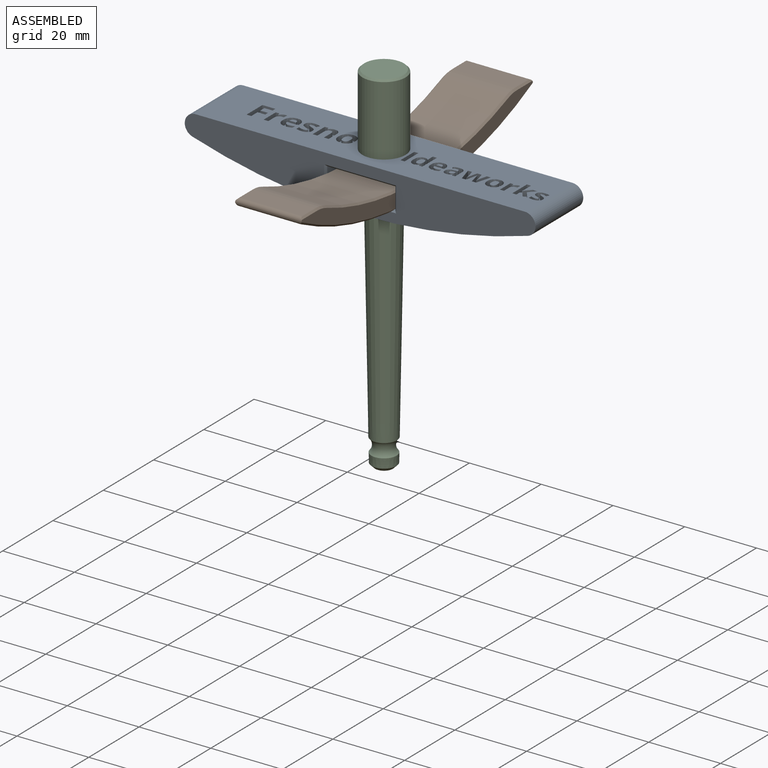
[diagram: assembled view]
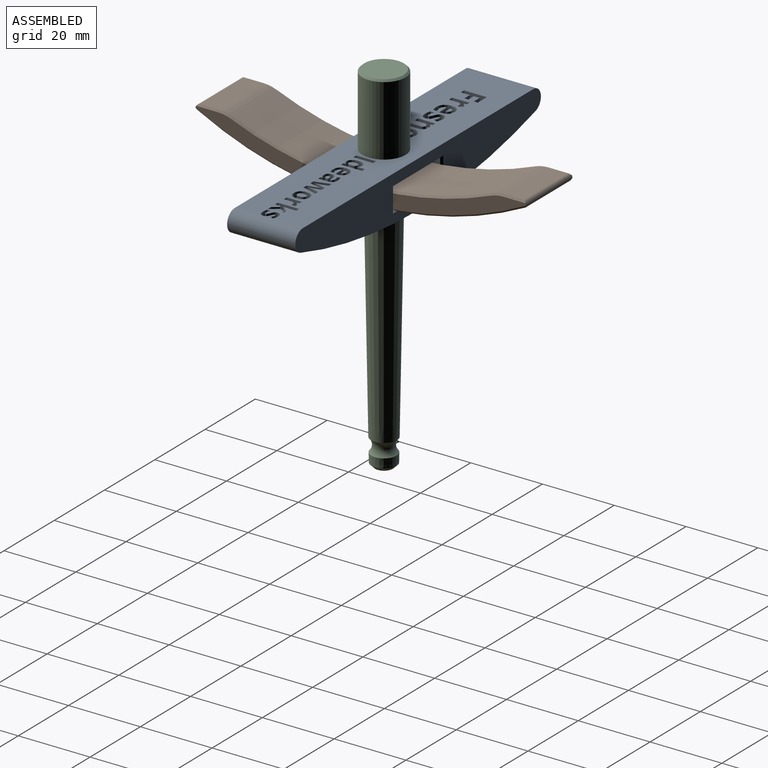
[diagram: assembled view, second angle]
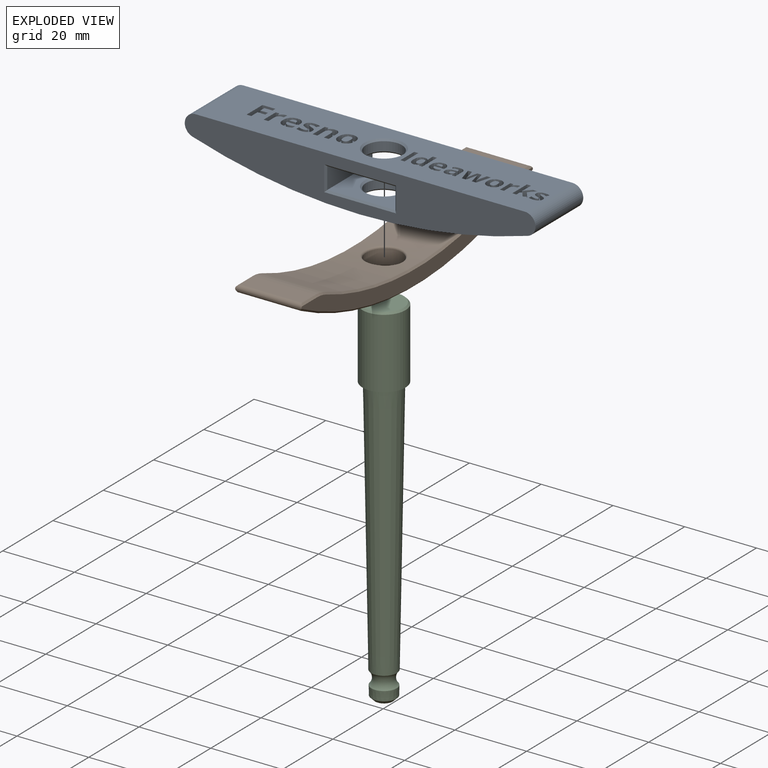
[diagram: exploded view]
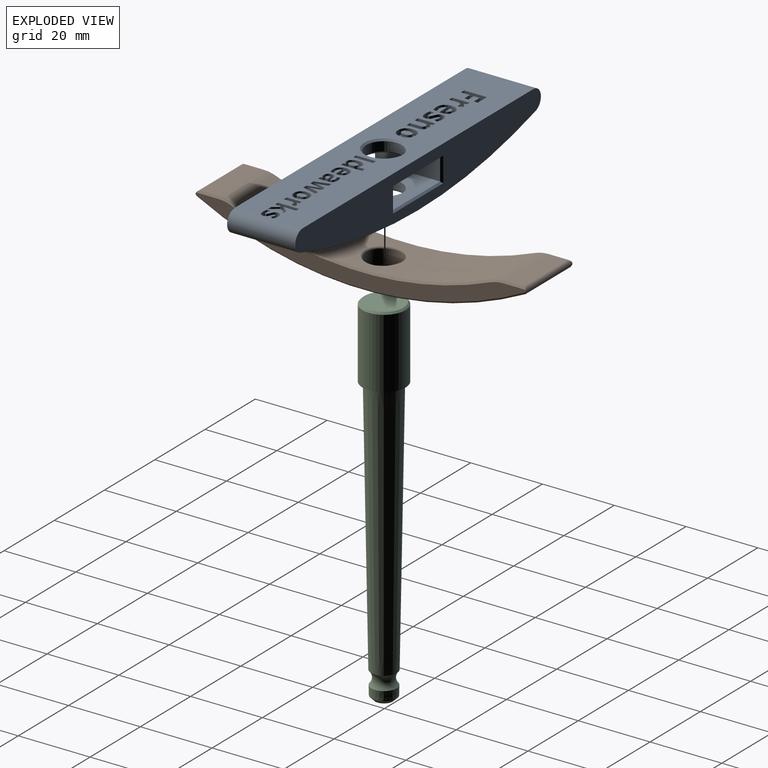
[diagram: exploded view, second angle]
ASSEMBLY  parts=3 mates=3
PART A: 319 faces, bbox 97.7x19x13 mm
  f0: plane 91.73x19mm, normal (0,0,-1), area 1462.8mm2, adj f6,f7,f10,f22,f23,f24,f25,f26
  f1: cylinder r=156.74mm len=93.51mm, axis (0,1,0), area 1709.6mm2, adj f6,f7,f13,f22,f23
  f2: plane 19x18mm, normal (0,0,1), area 247.5mm2, adj f3,f5,f11,f15,f19
  f3: plane 18x6mm, normal (1,0,0), area 108mm2, adj f2,f4,f17,f18
  f4: plane 19x18mm, normal (0,0,-1), area 247.5mm2, adj f3,f5,f12,f16,f20
  f5: plane 18x6mm, normal (-1,0,0), area 108mm2, adj f2,f4,f14,f21
  f6: plane 97.73x13mm, normal (0,-1,0), area 872.9mm2, adj f0,f1,f18,f19,f20,f21,f22,f23
  f7: plane 97.73x13mm, normal (0,1,0), area 872.9mm2, adj f0,f1,f14,f15,f16,f17,f22,f23
  f8: cylinder r=5mm len=10mm, axis (0,0,-1), area 75.5mm2, adj f12,f13
  f9: cylinder r=5mm len=10mm, axis (0,0,-1), area 80.5mm2, adj f10,f11
  f10: cone r=5.48mm half-angle=45deg, axis (0,0,-1), area 22.6mm2, adj f0,f9
  f11: cone r=5.48mm half-angle=45deg, axis (0,0,1), area 22.6mm2, adj f2,f9
  f12: cone r=5mm half-angle=45deg, axis (0,0,-1), area 22.6mm2, adj f4,f8
  f13: bspline ~11x10.97mm, area 22.8mm2, adj f1,f8
  f14: plane 7x0.5mm, normal (-0.71,0.71,0), area 4.6mm2, adj f5,f7,f15,f16
  f15: plane 20x0.5mm, normal (0,0.71,0.71), area 13.8mm2, adj f2,f7,f14,f17
  f16: plane 20x0.5mm, normal (0,0.71,-0.71), area 13.8mm2, adj f4,f7,f14,f17
  f17: plane 7x0.5mm, normal (0.71,0.71,0), area 4.6mm2, adj f3,f7,f15,f16
  f18: plane 7x0.5mm, normal (0.71,-0.71,0), area 4.6mm2, adj f3,f6,f19,f20
  f19: plane 20x0.5mm, normal (0,-0.71,0.71), area 13.8mm2, adj f2,f6,f18,f21
  f20: plane 20x0.5mm, normal (0,-0.71,-0.71), area 13.8mm2, adj f4,f6,f18,f21
  f21: plane 7x0.5mm, normal (-0.71,-0.71,0), area 4.6mm2, adj f5,f6,f19,f20
  f22: cylinder r=3mm len=19mm, axis (0,1,0), area 161.8mm2, adj f0,f1,f6,f7
  f23: cylinder r=3mm len=19mm, axis (0,1,0), area 161.8mm2, adj f0,f1,f6,f7
  f24: extruded ~1.5x0.45mm, area 0.7mm2, adj f0,f25,f36,f37
  f25: extruded ~1.5x0.83mm, area 1.3mm2, adj f0,f24,f26,f37
  f26: extruded ~1.5x0.66mm, area 1.4mm2, adj f0,f25,f27,f37
  f27: plane 1.5x0.06mm, normal (0,1,0), area 0.1mm2, adj f0,f26,f28,f37
  f28: plane 1.5x0.81mm, normal (-0.97,0.23,0), area 1.3mm2, adj f0,f27,f29,f37
  f29: plane 1.5x1mm, normal (0,1,0), area 1.5mm2, adj f0,f28,f30,f37
  f30: plane 4.84x1.5mm, normal (1,0,0), area 7.3mm2, adj f0,f29,f31,f37
  f31: plane 1.5x1.32mm, normal (0,-1,0), area 2mm2, adj f0,f30,f32,f37
  f32: plane 2.46x1.5mm, normal (-1,0,0), area 3.7mm2, adj f0,f31,f33,f37
  f33: extruded ~1.5x0.91mm, area 1.5mm2, adj f0,f32,f34,f37
  f34: extruded ~1.5x0.98mm, area 1.6mm2, adj f0,f33,f35,f37
  f35: extruded ~1.5x0.39mm, area 0.6mm2, adj f0,f34,f36,f37
  f36: plane 1.5x1.24mm, normal (-1,-0.08,0), area 1.9mm2, adj f0,f24,f35,f37
  f37: plane 4.93x3.14mm, normal (0,0,-1), area 8.4mm2, adj f24,f25,f26,f27,f28,f29,f30,f31
  f38: extruded ~1.5x1.13mm, area 1.9mm2, adj f0,f39,f63,f64
  f39: extruded ~1.5x0.62mm, area 1mm2, adj f0,f38,f40,f64
  f40: extruded ~1.5x0.46mm, area 0.9mm2, adj f0,f39,f41,f64
  f41: extruded ~1.5x0.83mm, area 1.4mm2, adj f0,f40,f42,f64
  f42: extruded ~1.5x0.83mm, area 1.4mm2, adj f0,f41,f43,f64
  f43: extruded ~1.5x0.31mm, area 0.6mm2, adj f0,f42,f44,f64
  f44: extruded ~1.5x0.58mm, area 1.1mm2, adj f0,f43,f45,f64
  f45: extruded ~1.5x0.65mm, area 1mm2, adj f0,f44,f46,f64
  f46: extruded ~1.5x0.68mm, area 1.1mm2, adj f0,f45,f47,f64
  f47: plane 1.5x0.95mm, normal (-0.92,-0.39,0), area 1.5mm2, adj f0,f46,f48,f64
  f48: extruded ~1.7x1.5mm, area 2.6mm2, adj f0,f47,f49,f64
  f49: extruded ~1.5x1.42mm, area 2.2mm2, adj f0,f48,f50,f64
  f50: extruded ~1.5x1mm, area 1.7mm2, adj f0,f49,f51,f64
  f51: extruded ~1.5x0.63mm, area 1mm2, adj f0,f50,f52,f64
  f52: extruded ~1.5x0.46mm, area 0.9mm2, adj f0,f51,f53,f64
  f53: extruded ~1.5x0.82mm, area 1.4mm2, adj f0,f52,f54,f64
  f54: extruded ~1.5x0.62mm, area 1mm2, adj f0,f53,f55,f64
  f55: extruded ~1.5x0.33mm, area 0.6mm2, adj f0,f54,f56,f64
  f56: extruded ~1.5x0.25mm, area 0.4mm2, adj f0,f55,f57,f64
  f57: extruded ~1.5x0.72mm, area 1.4mm2, adj f0,f56,f58,f64
  f58: extruded ~1.5x0.81mm, area 1.2mm2, adj f0,f57,f59,f64
  f59: extruded ~1.5x0.83mm, area 1.3mm2, adj f0,f58,f60,f64
  f60: plane 1.5x1.09mm, normal (1,0,0), area 1.6mm2, adj f0,f59,f61,f64
  f61: extruded ~1.5x0.7mm, area 1.1mm2, adj f0,f60,f62,f64
  f62: extruded ~1.5x0.9mm, area 1.4mm2, adj f0,f61,f63,f64
  f63: extruded ~1.55x1.5mm, area 2.4mm2, adj f0,f38,f62,f64
  f64: plane 5.01x3.67mm, normal (0,0,-1), area 11.7mm2, adj f38,f39,f40,f41,f42,f43,f44,f45
  f65: plane 1.5x1.32mm, normal (0,-1,0), area 2mm2, adj f0,f66,f81,f82
  f66: plane 3.15x1.5mm, normal (-1,0,0), area 4.7mm2, adj f0,f65,f67,f82
  f67: extruded ~1.5x1.32mm, area 2.1mm2, adj f0,f66,f68,f82
  f68: extruded ~1.5x1.28mm, area 2.1mm2, adj f0,f67,f69,f82
  f69: extruded ~1.5x0.88mm, area 1.4mm2, adj f0,f68,f70,f82
  f70: extruded ~1.5x0.61mm, area 1.2mm2, adj f0,f69,f71,f82
  f71: plane 1.5x0.07mm, normal (0,1,0), area 0.1mm2, adj f0,f70,f72,f82
  f72: plane 1.5x0.62mm, normal (-0.96,0.28,0), area 1mm2, adj f0,f71,f73,f82
  f73: plane 1.5x1.01mm, normal (0,1,0), area 1.5mm2, adj f0,f72,f74,f82
  f74: plane 4.84x1.5mm, normal (1,0,0), area 7.3mm2, adj f0,f73,f75,f82
  f75: plane 1.5x1.32mm, normal (0,-1,0), area 2mm2, adj f0,f74,f76,f82
  f76: plane 2.28x1.5mm, normal (-1,0,0), area 3.4mm2, adj f0,f75,f77,f82
  f77: extruded ~1.5x1.23mm, area 1.9mm2, adj f0,f76,f78,f82
  f78: extruded ~1.5x0.8mm, area 1.4mm2, adj f0,f77,f79,f82
  f79: extruded ~1.5x0.59mm, area 1mm2, adj f0,f78,f80,f82
  f80: extruded ~1.5x0.78mm, area 1.2mm2, adj f0,f79,f81,f82
  f81: plane 2.82x1.5mm, normal (1,0,0), area 4.2mm2, adj f0,f65,f80,f82
  f82: plane 4.93x4.46mm, normal (0,0,-1), area 14.3mm2, adj f65,f66,f67,f68,f69,f70,f71,f72
  f83: plane 5.46x1.5mm, normal (1,0,0), area 8.2mm2, adj f0,f84,f86,f87
  f84: plane 1.5x1.16mm, normal (0,-1,0), area 1.7mm2, adj f0,f83,f85,f87
  f85: plane 5.46x1.5mm, normal (-1,0,0), area 8.2mm2, adj f0,f84,f86,f87
  f86: plane 1.5x1.16mm, normal (0,1,0), area 1.7mm2, adj f0,f83,f85,f87
  f87: plane 5.46x1.16mm, normal (0,0,-1), area 6.3mm2, adj f83,f84,f85,f86
  f88: plane 1.5x1.46mm, normal (0.98,-0.21,0), area 2.2mm2, adj f0,f89,f113,f114
  f89: plane 1.5x1.24mm, normal (0,-1,0), area 1.9mm2, adj f0,f88,f90,f114
  f90: plane 4.17x1.5mm, normal (-0.96,-0.28,0), area 6.5mm2, adj f0,f89,f91,f114
  f91: plane 1.5x1.12mm, normal (0,1,0), area 1.7mm2, adj f0,f90,f92,f114
  f92: plane 1.85x1.5mm, normal (0.97,0.26,0), area 2.9mm2, adj f0,f91,f93,f114
  f93: extruded ~1.5x0.63mm, area 1mm2, adj f0,f92,f94,f114
  f94: extruded ~1.5x0.74mm, area 1.1mm2, adj f0,f93,f95,f114
  f95: plane 1.5x0.02mm, normal (0,1,0), area 0mm2, adj f0,f94,f96,f114
  f96: extruded ~1.5x0.28mm, area 0.4mm2, adj f0,f95,f97,f114
  f97: extruded ~1.5x0.35mm, area 0.5mm2, adj f0,f96,f98,f114
  f98: extruded ~1.5x0.34mm, area 0.5mm2, adj f0,f97,f99,f114
  f99: extruded ~1.5x0.24mm, area 0.4mm2, adj f0,f98,f100,f114
  f100: plane 2x1.5mm, normal (-0.97,0.24,0), area 3.1mm2, adj f0,f99,f101,f114
  f101: plane 1.5x1.25mm, normal (0,1,0), area 1.9mm2, adj f0,f100,f102,f114
  f102: plane 2x1.5mm, normal (0.97,0.25,0), area 3.1mm2, adj f0,f101,f103,f114
  f103: plane 1.5x0.32mm, normal (0.98,0.18,0), area 0.5mm2, adj f0,f102,f104,f114
  f104: extruded ~1.5x0.9mm, area 1.4mm2, adj f0,f103,f105,f114
  f105: plane 1.5x0.02mm, normal (0,1,0), area 0mm2, adj f0,f104,f106,f114
  f106: extruded ~1.5x1.37mm, area 2.1mm2, adj f0,f105,f107,f114
  f107: plane 1.85x1.5mm, normal (-0.97,0.25,0), area 2.9mm2, adj f0,f106,f108,f114
  f108: plane 1.5x1.14mm, normal (0,1,0), area 1.7mm2, adj f0,f107,f109,f114
  f109: plane 4.17x1.5mm, normal (0.96,-0.27,0), area 6.5mm2, adj f0,f108,f110,f114
  f110: plane 1.5x1.22mm, normal (0,-1,0), area 1.8mm2, adj f0,f109,f111,f114
  f111: plane 3.3x1.5mm, normal (-0.97,-0.22,0), area 5.1mm2, adj f0,f110,f112,f114
  f112: plane 1.5x0.03mm, normal (0,-1,0), area 0mm2, adj f0,f111,f113,f114
  f113: plane 1.84x1.5mm, normal (0.97,-0.23,0), area 2.8mm2, adj f0,f88,f112,f114
  f114: plane 6.39x4.17mm, normal (0,0,-1), area 14.9mm2, adj f88,f89,f90,f91,f92,f93,f94,f95
  f115: extruded ~1.5x0.38mm, area 0.6mm2, adj f0,f116,f127,f128
  f116: extruded ~1.5x0.72mm, area 1.1mm2, adj f0,f115,f117,f128
  f117: extruded ~1.5x0.57mm, area 1.2mm2, adj f0,f116,f118,f128
  f118: plane 1.5x0.06mm, normal (0,1,0), area 0.1mm2, adj f0,f117,f119,f128
  f119: plane 1.5x0.7mm, normal (-0.97,0.23,0), area 1.1mm2, adj f0,f118,f120,f128
  f120: plane 1.5x0.86mm, normal (0,1,0), area 1.3mm2, adj f0,f119,f121,f128
  f121: plane 4.17x1.5mm, normal (1,0,0), area 6.3mm2, adj f0,f120,f122,f128
  f122: plane 1.5x1.14mm, normal (0,-1,0), area 1.7mm2, adj f0,f121,f123,f128
  f123: plane 2.12x1.5mm, normal (-1,0,0), area 3.2mm2, adj f0,f122,f124,f128
  f124: extruded ~1.5x0.78mm, area 1.3mm2, adj f0,f123,f125,f128
  f125: extruded ~1.5x0.85mm, area 1.4mm2, adj f0,f124,f126,f128
  f126: extruded ~1.5x0.34mm, area 0.5mm2, adj f0,f125,f127,f128
  f127: plane 1.5x1.07mm, normal (-1,-0.08,0), area 1.6mm2, adj f0,f115,f126,f128
  f128: plane 4.25x2.71mm, normal (0,0,-1), area 6.2mm2, adj f115,f116,f117,f118,f119,f120,f121,f122
  f129: plane 1.5x0.63mm, normal (0.79,0.62,0), area 1.2mm2, adj f0,f130,f143,f144
  f130: plane 1.5x0.02mm, normal (0,1,0), area 0mm2, adj f0,f129,f131,f144
  f131: plane 1.5x0.95mm, normal (-1,-0.06,0), area 1.4mm2, adj f0,f130,f132,f144
  f132: plane 2.59x1.5mm, normal (-1,0,0), area 3.9mm2, adj f0,f131,f133,f144
  f133: plane 1.5x1.14mm, normal (0,1,0), area 1.7mm2, adj f0,f132,f134,f144
  f134: plane 5.81x1.5mm, normal (1,0,0), area 8.7mm2, adj f0,f133,f135,f144
  f135: plane 1.5x1.14mm, normal (0,-1,0), area 1.7mm2, adj f0,f134,f136,f144
  f136: plane 1.5x1.3mm, normal (-1,0,0), area 1.9mm2, adj f0,f135,f137,f144
  f137: plane 1.5x0.49mm, normal (-0.62,-0.78,0), area 0.9mm2, adj f0,f136,f138,f144
  f138: plane 1.69x1.5mm, normal (0.82,-0.58,0), area 3.1mm2, adj f0,f137,f139,f144
  f139: plane 1.5x1.31mm, normal (0,-1,0), area 2mm2, adj f0,f138,f140,f144
  f140: plane 2.36x1.76mm, normal (-0.8,0.6,0), area 4.4mm2, adj f0,f139,f141,f144
  f141: plane 1.81x1.66mm, normal (-0.74,-0.68,0), area 3.7mm2, adj f0,f140,f142,f144
  f142: plane 1.5x1.28mm, normal (0,1,0), area 1.9mm2, adj f0,f141,f143,f144
  f143: plane 1.5x1.27mm, normal (0.74,0.68,0), area 2.6mm2, adj f0,f129,f142,f144
  f144: plane 5.81x4.14mm, normal (0,0,-1), area 12.2mm2, adj f129,f130,f131,f132,f133,f134,f135,f136
  f145: extruded ~1.5x0.98mm, area 1.7mm2, adj f0,f146,f170,f171
  f146: extruded ~1.5x0.53mm, area 0.8mm2, adj f0,f145,f147,f171
  f147: extruded ~1.5x0.4mm, area 0.8mm2, adj f0,f146,f148,f171
  f148: extruded ~1.5x0.72mm, area 1.2mm2, adj f0,f147,f149,f171
  f149: extruded ~1.5x0.71mm, area 1.2mm2, adj f0,f148,f150,f171
  f150: extruded ~1.5x0.27mm, area 0.5mm2, adj f0,f149,f151,f171
  f151: extruded ~1.5x0.5mm, area 1mm2, adj f0,f150,f152,f171
  f152: extruded ~1.5x0.56mm, area 0.8mm2, adj f0,f151,f153,f171
  f153: extruded ~1.5x0.59mm, area 0.9mm2, adj f0,f152,f154,f171
  f154: plane 1.5x0.82mm, normal (-0.92,-0.39,0), area 1.3mm2, adj f0,f153,f155,f171
  f155: extruded ~1.5x1.47mm, area 2.3mm2, adj f0,f154,f156,f171
  f156: extruded ~1.5x1.22mm, area 1.9mm2, adj f0,f155,f157,f171
  f157: extruded ~1.5x0.86mm, area 1.5mm2, adj f0,f156,f158,f171
  f158: extruded ~1.5x0.55mm, area 0.8mm2, adj f0,f157,f159,f171
  f159: extruded ~1.5x0.39mm, area 0.8mm2, adj f0,f158,f160,f171
  f160: extruded ~1.5x0.71mm, area 1.2mm2, adj f0,f159,f161,f171
  f161: extruded ~1.5x0.54mm, area 0.9mm2, adj f0,f160,f162,f171
  f162: extruded ~1.5x0.28mm, area 0.5mm2, adj f0,f161,f163,f171
  f163: extruded ~1.5x0.22mm, area 0.4mm2, adj f0,f162,f164,f171
  f164: extruded ~1.5x0.62mm, area 1.2mm2, adj f0,f163,f165,f171
  f165: extruded ~1.5x0.7mm, area 1.1mm2, adj f0,f164,f166,f171
  f166: extruded ~1.5x0.71mm, area 1.1mm2, adj f0,f165,f167,f171
  f167: plane 1.5x0.94mm, normal (1,0,0), area 1.4mm2, adj f0,f166,f168,f171
  f168: extruded ~1.5x0.6mm, area 0.9mm2, adj f0,f167,f169,f171
  f169: extruded ~1.5x0.78mm, area 1.2mm2, adj f0,f168,f170,f171
  f170: extruded ~1.5x1.34mm, area 2.1mm2, adj f0,f145,f169,f171
  f171: plane 4.33x3.17mm, normal (0,0,-1), area 8.7mm2, adj f145,f146,f147,f148,f149,f150,f151,f152
  f172: extruded ~1.82x1.5mm, area 3mm2, adj f0,f173,f191,f192
  f173: extruded ~1.5x0.96mm, area 1.4mm2, adj f0,f172,f174,f192
  f174: extruded ~1.5x0.74mm, area 1.2mm2, adj f0,f173,f175,f192
  f175: plane 1.5x1.02mm, normal (-1,0,0), area 1.5mm2, adj f0,f174,f176,f192
  f176: extruded ~1.5x0.81mm, area 1.3mm2, adj f0,f175,f177,f192
  f177: extruded ~1.5x0.83mm, area 1.2mm2, adj f0,f176,f178,f192
  f178: extruded ~1.5x0.87mm, area 1.4mm2, adj f0,f177,f179,f192
  f179: extruded ~1.5x0.88mm, area 1.4mm2, adj f0,f178,f180,f192
  f180: plane 3.12x1.5mm, normal (0,-1,0), area 4.7mm2, adj f0,f179,f181,f192
  f181: plane 1.5x0.64mm, normal (-1,0,0), area 1mm2, adj f0,f180,f182,f192
  f182: extruded ~1.61x1.5mm, area 2.6mm2, adj f0,f181,f183,f192
  f183: extruded ~1.6x1.5mm, area 2.6mm2, adj f0,f182,f184,f192
  f184: extruded ~1.68x1.5mm, area 2.8mm2, adj f0,f183,f185,f192
  f185: extruded ~1.88x1.5mm, area 3mm2, adj f0,f184,f191,f192
  f186: extruded ~1.5x0.66mm, area 1.1mm2, adj f187,f190,f192,f193
  f187: extruded ~1.5x0.67mm, area 1.1mm2, adj f186,f188,f192,f193
  f188: extruded ~1.5x0.75mm, area 1.2mm2, adj f187,f189,f192,f193
  f189: plane 1.85x1.5mm, normal (0,1,0), area 2.8mm2, adj f188,f190,f192,f193
  f190: extruded ~1.5x0.75mm, area 1.2mm2, adj f186,f189,f192,f193
  f191: extruded ~1.83x1.5mm, area 3mm2, adj f0,f172,f185,f192
  f192: plane 5.01x4.45mm, normal (0,0,-1), area 14.1mm2, adj f172,f173,f174,f175,f176,f177,f178,f179
  f193: plane 1.85x1.02mm, normal (0,0,-1), area 1.5mm2, adj f186,f187,f188,f189,f190
  f194: extruded ~1.85x1.5mm, area 3mm2, adj f0,f195,f211,f212
  f195: extruded ~1.5x1.33mm, area 2.1mm2, adj f0,f194,f196,f212
  f196: extruded ~1.5x0.87mm, area 1.8mm2, adj f0,f195,f197,f212
  f197: extruded ~1.5x1.23mm, area 1.9mm2, adj f0,f196,f198,f212
  f198: extruded ~1.74x1.5mm, area 2.9mm2, adj f0,f197,f199,f212
  f199: extruded ~1.84x1.5mm, area 3mm2, adj f0,f198,f200,f212
  f200: extruded ~1.5x1.33mm, area 2.1mm2, adj f0,f199,f201,f212
  f201: extruded ~1.5x0.88mm, area 1.8mm2, adj f0,f200,f202,f212
  f202: extruded ~1.5x1.23mm, area 1.9mm2, adj f0,f201,f211,f212
  f203: extruded ~1.5x1.09mm, area 1.7mm2, adj f204,f210,f212,f213
  f204: extruded ~1.5x1.08mm, area 1.7mm2, adj f203,f205,f212,f213
  f205: extruded ~1.5x0.76mm, area 1.3mm2, adj f204,f206,f212,f213
  f206: extruded ~1.5x0.77mm, area 1.3mm2, adj f205,f207,f212,f213
  f207: extruded ~1.5x1.08mm, area 1.7mm2, adj f206,f208,f212,f213
  f208: extruded ~1.5x1.09mm, area 1.7mm2, adj f207,f209,f212,f213
  f209: extruded ~1.5x0.76mm, area 1.3mm2, adj f208,f210,f212,f213
  f210: extruded ~1.5x0.77mm, area 1.3mm2, adj f203,f209,f212,f213
  f211: extruded ~1.73x1.5mm, area 2.9mm2, adj f0,f194,f202,f212
  f212: plane 5.01x4.69mm, normal (0,0,-1), area 14.3mm2, adj f194,f195,f196,f197,f198,f199,f200,f201
  f213: plane 2.89x1.99mm, normal (0,0,-1), area 4.8mm2, adj f203,f204,f205,f206,f207,f208,f209,f210
  f214: extruded ~1.5x0.64mm, area 1.1mm2, adj f215,f236,f237,f317
  f215: extruded ~1.5x0.61mm, area 1.1mm2, adj f214,f216,f237,f317
  f216: extruded ~1.5x0.92mm, area 1.4mm2, adj f215,f217,f237,f317
  f217: extruded ~1.5x0.94mm, area 1.5mm2, adj f216,f218,f237,f317
  f218: extruded ~1.5x0.59mm, area 1.1mm2, adj f217,f219,f237,f317
  f219: extruded ~1.5x0.67mm, area 1.1mm2, adj f218,f220,f237,f317
  f220: extruded ~1.5x0.96mm, area 1.5mm2, adj f219,f221,f237,f317
  f221: plane 1.5x0.12mm, normal (1,0,0), area 0.2mm2, adj f220,f236,f237,f317
  f222: extruded ~1.5x1.15mm, area 2mm2, adj f0,f223,f235,f237
  f223: extruded ~1.5x1.18mm, area 2.1mm2, adj f0,f222,f224,f237
  f224: plane 1.5x0.05mm, normal (0,-1,0), area 0.1mm2, adj f0,f223,f225,f237
  f225: plane 1.5x0.54mm, normal (0.93,-0.38,0), area 0.9mm2, adj f0,f224,f226,f237
  f226: plane 1.5x0.87mm, normal (0,-1,0), area 1.3mm2, adj f0,f225,f227,f237
  f227: plane 5.81x1.5mm, normal (-1,0,0), area 8.7mm2, adj f0,f226,f228,f237
  f228: plane 1.5x1.14mm, normal (0,1,0), area 1.7mm2, adj f0,f227,f229,f237
  f229: plane 1.5x1.34mm, normal (1,0,0), area 2mm2, adj f0,f228,f230,f237
  f230: extruded ~1.5x0.83mm, area 1.3mm2, adj f0,f229,f231,f237
  f231: plane 1.5x0.04mm, normal (0,1,0), area 0.1mm2, adj f0,f230,f232,f237
  f232: extruded ~1.5x1.2mm, area 2.1mm2, adj f0,f231,f233,f237
  f233: extruded ~1.5x1.18mm, area 2mm2, adj f0,f232,f234,f237
  f234: extruded ~1.6x1.5mm, area 2.5mm2, adj f0,f233,f235,f237
  f235: extruded ~1.58x1.5mm, area 2.5mm2, adj f0,f222,f234,f237
  f236: extruded ~1.5x0.86mm, area 1.4mm2, adj f214,f221,f237,f317
  f237: plane 5.88x3.9mm, normal (0,0,-1), area 13.3mm2, adj f214,f215,f216,f217,f218,f219,f220,f221
  f238: extruded ~1.57x1.5mm, area 2.6mm2, adj f0,f239,f257,f258
  f239: extruded ~1.5x0.83mm, area 1.3mm2, adj f0,f238,f240,f258
  f240: extruded ~1.5x0.64mm, area 1mm2, adj f0,f239,f241,f258
  f241: plane 1.5x0.88mm, normal (-1,0,0), area 1.3mm2, adj f0,f240,f242,f258
  f242: extruded ~1.5x0.7mm, area 1.1mm2, adj f0,f241,f243,f258
  f243: extruded ~1.5x0.71mm, area 1.1mm2, adj f0,f242,f244,f258
  f244: extruded ~1.5x0.75mm, area 1.2mm2, adj f0,f243,f245,f258
  f245: extruded ~1.5x0.76mm, area 1.2mm2, adj f0,f244,f246,f258
  f246: plane 2.69x1.5mm, normal (0,-1,0), area 4mm2, adj f0,f245,f247,f258
  f247: plane 1.5x0.55mm, normal (-1,0,0), area 0.8mm2, adj f0,f246,f248,f258
  f248: extruded ~1.5x1.39mm, area 2.3mm2, adj f0,f247,f249,f258
  f249: extruded ~1.5x1.38mm, area 2.3mm2, adj f0,f248,f250,f258
  f250: extruded ~1.5x1.45mm, area 2.4mm2, adj f0,f249,f251,f258
  f251: extruded ~1.62x1.5mm, area 2.6mm2, adj f0,f250,f257,f258
  f252: extruded ~1.5x0.57mm, area 0.9mm2, adj f253,f256,f258,f259
  f253: extruded ~1.5x0.57mm, area 1mm2, adj f252,f254,f258,f259
  f254: extruded ~1.5x0.65mm, area 1.1mm2, adj f253,f255,f258,f259
  f255: plane 1.6x1.5mm, normal (0,1,0), area 2.4mm2, adj f254,f256,f258,f259
  f256: extruded ~1.5x0.65mm, area 1.1mm2, adj f252,f255,f258,f259
  f257: extruded ~1.58x1.5mm, area 2.6mm2, adj f0,f238,f251,f258
  f258: plane 4.33x3.84mm, normal (0,0,-1), area 10.5mm2, adj f238,f239,f240,f241,f242,f243,f244,f245
  f259: plane 1.6x0.88mm, normal (0,0,-1), area 1.1mm2, adj f252,f253,f254,f255,f256
  f260: plane 1.5x0.44mm, normal (-0.04,-1,0), area 0.7mm2, adj f261,f284,f285,f318
  f261: plane 1.5x0.34mm, normal (1,0,0), area 0.5mm2, adj f260,f262,f285,f318
  f262: extruded ~1.5x0.6mm, area 1mm2, adj f261,f263,f285,f318
  f263: extruded ~1.5x0.63mm, area 1mm2, adj f262,f264,f285,f318
  f264: extruded ~1.5x0.55mm, area 1.3mm2, adj f263,f265,f285,f318
  f265: extruded ~1.5x0.5mm, area 0.9mm2, adj f264,f284,f285,f318
  f266: plane 1.5x0.57mm, normal (0.93,-0.36,0), area 0.9mm2, adj f0,f267,f283,f285
  f267: plane 1.5x0.79mm, normal (0,-1,0), area 1.2mm2, adj f0,f266,f268,f285
  f268: plane 2.78x1.5mm, normal (-1,0,0), area 4.2mm2, adj f0,f267,f269,f285
  f269: extruded ~1.5x1.11mm, area 1.9mm2, adj f0,f268,f270,f285
  f270: extruded ~1.5x1.29mm, area 2mm2, adj f0,f269,f271,f285
  f271: extruded ~1.6x1.5mm, area 2.5mm2, adj f0,f270,f272,f285
  f272: plane 1.5x0.77mm, normal (0.9,-0.44,0), area 1.3mm2, adj f0,f271,f273,f285
  f273: extruded ~1.5x1.18mm, area 1.8mm2, adj f0,f272,f274,f285
  f274: extruded ~1.5x0.65mm, area 1.6mm2, adj f0,f273,f275,f285
  f275: plane 1.5x0.18mm, normal (1,0,0), area 0.3mm2, adj f0,f274,f276,f285
  f276: plane 1.5x0.73mm, normal (0.03,1,0), area 1.1mm2, adj f0,f275,f277,f285
  f277: extruded ~1.5x1.4mm, area 2.2mm2, adj f0,f276,f278,f285
  f278: extruded ~1.5x0.98mm, area 1.7mm2, adj f0,f277,f279,f285
  f279: extruded ~1.5x0.98mm, area 1.6mm2, adj f0,f278,f280,f285
  f280: extruded ~1.5x0.95mm, area 1.6mm2, adj f0,f279,f281,f285
  f281: extruded ~1.5x0.79mm, area 1.2mm2, adj f0,f280,f282,f285
  f282: extruded ~1.5x0.59mm, area 1.2mm2, adj f0,f281,f283,f285
  f283: plane 1.5x0.03mm, normal (0,-1,0), area 0mm2, adj f0,f266,f282,f285
  f284: extruded ~1.5x0.74mm, area 1.2mm2, adj f260,f265,f285,f318
  f285: plane 4.34x3.72mm, normal (0,0,-1), area 10.7mm2, adj f260,f261,f262,f263,f264,f265,f266,f267
  f286: extruded ~1.59x1.5mm, area 2.6mm2, adj f0,f287,f303,f304
  f287: extruded ~1.5x1.15mm, area 1.8mm2, adj f0,f286,f288,f304
  f288: extruded ~1.5x0.75mm, area 1.6mm2, adj f0,f287,f289,f304
  f289: extruded ~1.5x1.06mm, area 1.7mm2, adj f0,f288,f290,f304
  f290: extruded ~1.5x1.5mm, area 2.5mm2, adj f0,f289,f291,f304
  f291: extruded ~1.59x1.5mm, area 2.6mm2, adj f0,f290,f292,f304
  f292: extruded ~1.5x1.15mm, area 1.8mm2, adj f0,f291,f293,f304
  f293: extruded ~1.5x0.76mm, area 1.6mm2, adj f0,f292,f294,f304
  f294: extruded ~1.5x1.06mm, area 1.7mm2, adj f0,f293,f303,f304
  f295: extruded ~1.5x0.94mm, area 1.5mm2, adj f296,f302,f304,f305
  f296: extruded ~1.5x0.93mm, area 1.4mm2, adj f295,f297,f304,f305
  f297: extruded ~1.5x0.66mm, area 1.1mm2, adj f296,f298,f304,f305
  f298: extruded ~1.5x0.66mm, area 1.1mm2, adj f297,f299,f304,f305
  f299: extruded ~1.5x0.93mm, area 1.4mm2, adj f298,f300,f304,f305
  f300: extruded ~1.5x0.94mm, area 1.5mm2, adj f299,f301,f304,f305
  f301: extruded ~1.5x0.66mm, area 1.1mm2, adj f300,f302,f304,f305
  f302: extruded ~1.5x0.66mm, area 1.2mm2, adj f295,f301,f304,f305
  f303: extruded ~1.5x1.5mm, area 2.5mm2, adj f0,f286,f294,f304
  f304: plane 4.33x4.05mm, normal (0,0,-1), area 10.7mm2, adj f286,f287,f288,f289,f290,f291,f292,f293
  f305: plane 2.49x1.72mm, normal (0,0,-1), area 3.6mm2, adj f295,f296,f297,f298,f299,f300,f301,f302
  f306: plane 1.5x1.32mm, normal (0,-1,0), area 2mm2, adj f0,f307,f315,f316
  f307: plane 2.5x1.5mm, normal (-1,0,0), area 3.7mm2, adj f0,f306,f308,f316
  f308: plane 2.15x1.5mm, normal (0,-1,0), area 3.2mm2, adj f0,f307,f309,f316
  f309: plane 1.5x1.09mm, normal (-1,0,0), area 1.6mm2, adj f0,f308,f310,f316
  f310: plane 2.15x1.5mm, normal (0,1,0), area 3.2mm2, adj f0,f309,f311,f316
  f311: plane 1.63x1.5mm, normal (-1,0,0), area 2.4mm2, adj f0,f310,f312,f316
  f312: plane 2.31x1.5mm, normal (0,-1,0), area 3.5mm2, adj f0,f311,f313,f316
  f313: plane 1.5x1.1mm, normal (-1,0,0), area 1.6mm2, adj f0,f312,f314,f316
  f314: plane 3.62x1.5mm, normal (0,1,0), area 5.4mm2, adj f0,f313,f315,f316
  f315: plane 6.32x1.5mm, normal (1,0,0), area 9.5mm2, adj f0,f306,f314,f316
  f316: plane 6.32x3.62mm, normal (0,0,-1), area 13.2mm2, adj f306,f307,f308,f309,f310,f311,f312,f313
  f317: plane 2.49x1.68mm, normal (0,0,-1), area 3.5mm2, adj f214,f215,f216,f217,f218,f219,f220,f221
  f318: plane 1.42x1.18mm, normal (0,0,-1), area 1.4mm2, adj f260,f261,f262,f263,f264,f265,f284
PART B: 25 faces, bbox 92.5x18.5x12.8 mm
  f0: cylinder r=100mm len=90.95mm, axis (0,1,0), area 1556.5mm2, adj f19,f20,f21,f22,f23
  f1: cylinder r=94.98mm len=71.87mm, axis (0,1,0), area 1195.1mm2, adj f7,f8,f11,f16,f24
  f2: plane 17.5x5.3mm, normal (0,0,-1), area 92.7mm2, adj f7,f9,f14,f21
  f3: plane 17.5x5.3mm, normal (0,0,-1), area 92.7mm2, adj f8,f13,f18,f22
  f4: plane 92.04x11.83mm, normal (0,-1,0), area 353.5mm2, adj f14,f15,f16,f17,f18,f20,f21,f22
  f5: plane 92.04x11.83mm, normal (0,1,0), area 353.5mm2, adj f9,f10,f11,f12,f13,f19,f21,f22
  f6: cylinder r=5mm len=10mm, axis (0,0,-1), area 126.5mm2, adj f23,f24
  f7: cylinder r=10mm len=17.5mm, axis (0,1,0), area 67.9mm2, adj f1,f2,f10,f15
  f8: cylinder r=10mm len=17.5mm, axis (0,1,0), area 67.9mm2, adj f1,f3,f12,f17
  f9: plane 6.17x0.5mm, normal (0,0.71,-0.71), area 4.2mm2, adj f2,f5,f10,f21
  f10: cone r=9.5mm half-angle=45deg, axis (0,-1,0), area 2.7mm2, adj f5,f7,f9,f11
  f11: cone r=95.48mm half-angle=45deg, axis (0,1,0), area 52.3mm2, adj f1,f5,f10,f12
  f12: cone r=9.5mm half-angle=45deg, axis (0,-1,0), area 2.7mm2, adj f5,f8,f11,f13
  f13: plane 6.17x0.5mm, normal (0,0.71,-0.71), area 4.2mm2, adj f3,f5,f12,f22
  f14: plane 6.17x0.5mm, normal (0,-0.71,-0.71), area 4.2mm2, adj f2,f4,f15,f21
  f15: cone r=9.5mm half-angle=45deg, axis (0,1,0), area 2.7mm2, adj f4,f7,f14,f16
  f16: cone r=94.98mm half-angle=45deg, axis (0,-1,0), area 52.3mm2, adj f1,f4,f15,f17
  f17: cone r=9.5mm half-angle=45deg, axis (0,1,0), area 2.7mm2, adj f4,f8,f16,f18
  f18: plane 6.17x0.5mm, normal (0,-0.71,-0.71), area 4.2mm2, adj f3,f4,f17,f22
  f19: cone r=100mm half-angle=45deg, axis (0,-1,0), area 67.5mm2, adj f0,f5,f21,f22
  f20: cone r=99.5mm half-angle=45deg, axis (0,1,0), area 67.5mm2, adj f0,f4,f21,f22
  f21: cylinder r=1mm len=18.5mm, axis (0,1,0), area 48mm2, adj f0,f2,f4,f5,f9,f14,f19,f20
  f22: cylinder r=1mm len=18.5mm, axis (0,1,0), area 48mm2, adj f0,f3,f4,f5,f13,f18,f19,f20
  f23: bspline ~11.06x11.02mm, area 26.1mm2, adj f0,f6
  f24: bspline ~11.01x10.96mm, area 25.1mm2, adj f1,f6
PART C: 9 faces, bbox 12x100x12 mm
  f0: cylinder r=6mm len=19.5mm, axis (0,-1,0), area 735.1mm2, adj f1,f4
  f1: plane 12x12mm, normal (0,1,0), area 39.2mm2, adj f0,f2
  f2: cone r=3.45mm half-angle=1deg, axis (0,-1,0), area 1922mm2, adj f1,f5
  f3: plane 11x11mm, normal (0,-1,0), area 95mm2, adj f4
  f4: cone r=5.5mm half-angle=45deg, axis (0,1,0), area 25.5mm2, adj f0,f3
  f5: torus R=5.5mm, axis (0,-1,0), area 81.7mm2, adj f2,f8
  f6: plane 4.91x4.91mm, normal (0,1,0), area 18.9mm2, adj f7
  f7: cone r=3.47mm half-angle=45.5deg, axis (0,-1,0), area 26.6mm2, adj f6,f8
  f8: cone r=3.45mm half-angle=1deg, axis (0,-1,0), area 57mm2, adj f5,f7
PLACE A rot(axis=(1,0,0),180deg) t=(0.22,0.04,0)mm fixed
PLACE B rot(axis=(0.71,-0.71,0),180deg) t=(0.22,0.04,2.51)mm
PLACE C rot(axis=(-1,0,0),90deg) t=(0.22,0.04,20)mm
MATE slider B.f6 <-> A.f8  axis (0,0,1) through (0.22,0.04,-9.84)mm
MATE fastened C.f4 <-> A.f8  axis (0,0,1) through (0.22,0.04,0)mm
MATE slider C.f4 <-> A.f8  axis (0,0,1) through (0.22,0.04,0)mm
